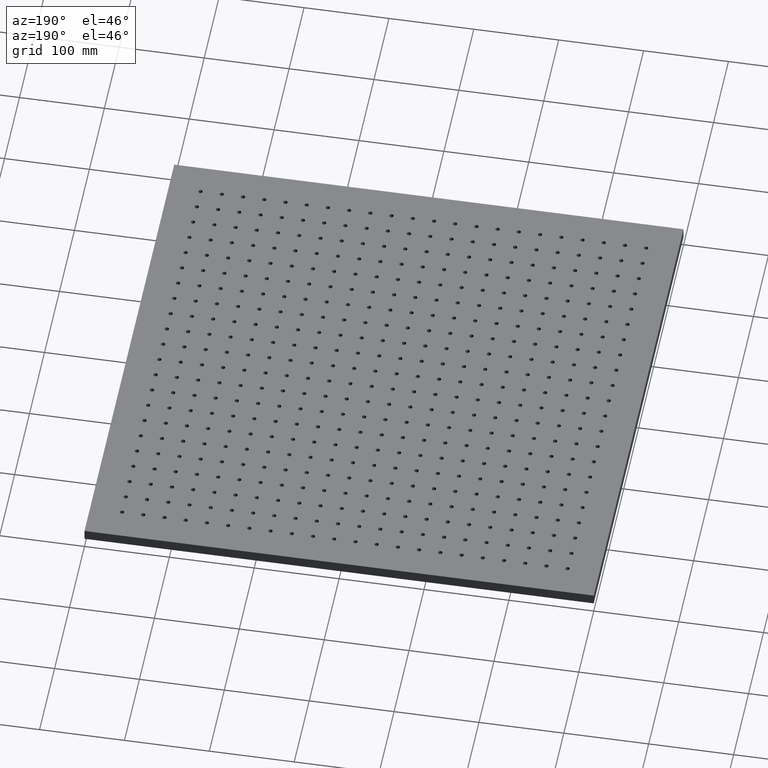
[diagram: clean part render]
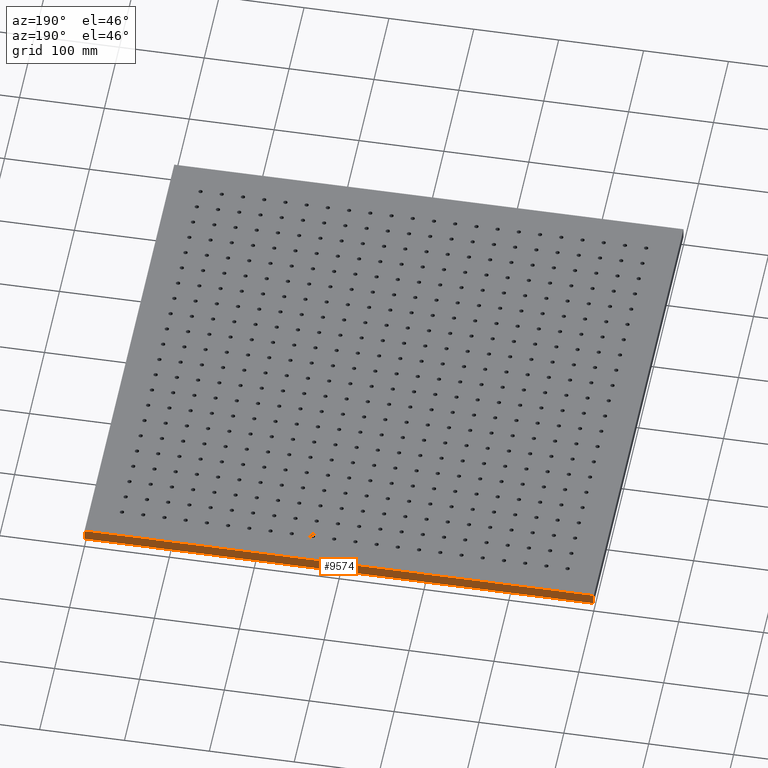
[diagram: same view with one face highlighted and labeled with its STEP entity id]
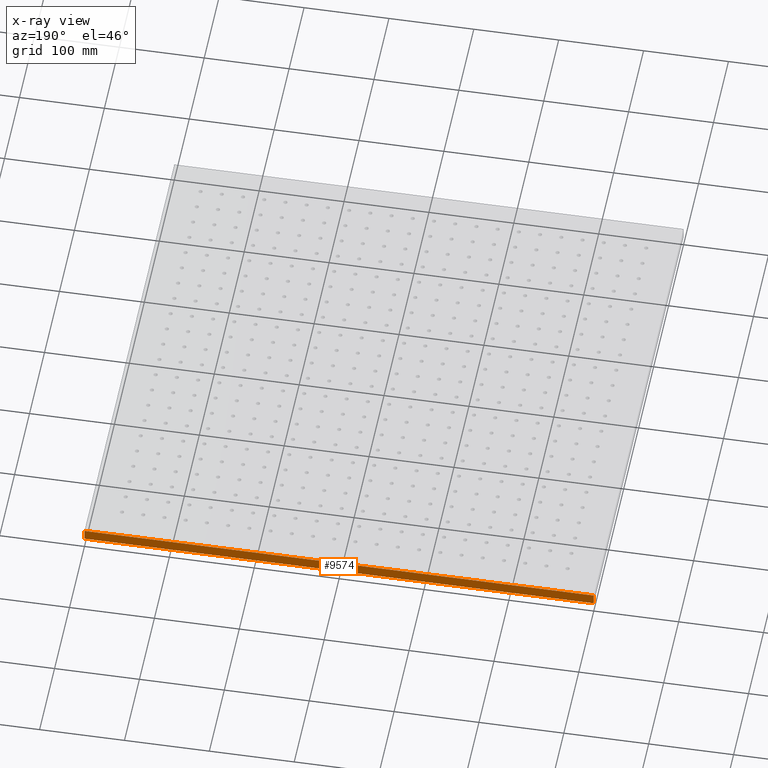
[diagram: x-ray of the same camera — body ghosted, the highlighted face saturated]
A machine part, auxiliary view. The second image highlights one B-rep face of the part: STEP entity #9574.
The next image is the same camera in x-ray: the body ghosted, the highlighted face saturated — about 0% of this face is hidden behind the body in this view.
In plain terms, the highlighted planar face has unit normal (0, -1, 0).
Its self-contained STEP definition (entity closure, byte-faithful):
#287 = EDGE_CURVE ( 'NONE', #5920, #21525, #28682, .T. ) ;
#2145 = DIRECTION ( 'NONE',  ( 0.0000000000000000000, -0.0000000000000000000, -1.000000000000000000 ) ) ;
#3049 = CARTESIAN_POINT ( 'NONE',  ( -300.0000000000000600, 300.0000000000000600, 0.0000000000000000000 ) ) ;
#4829 = VECTOR ( 'NONE', #22472, 1000.000000000000000 ) ;
#5288 = VECTOR ( 'NONE', #12835, 1000.000000000000000 ) ;
#5846 = VERTEX_POINT ( 'NONE', #29410 ) ;
#5920 = VERTEX_POINT ( 'NONE', #29646 ) ;
#9502 = EDGE_CURVE ( 'NONE', #5920, #5846, #33092, .T. ) ;
#9574 = ADVANCED_FACE ( 'NONE', ( #23104 ), #26957, .F. ) ;
#11517 = CARTESIAN_POINT ( 'NONE',  ( 299.9999999999999400, 300.0000000000000600, 0.0000000000000000000 ) ) ;
#12054 = ORIENTED_EDGE ( 'NONE', *, *, #16847, .T. ) ;
#12493 = DIRECTION ( 'NONE',  ( -0.0000000000000000000, -0.0000000000000000000, -1.000000000000000000 ) ) ;
#12835 = DIRECTION ( 'NONE',  ( -1.000000000000000000, -0.0000000000000000000, -0.0000000000000000000 ) ) ;
#13055 = EDGE_LOOP ( 'NONE', ( #12054, #32391, #32812, #27973 ) ) ;
#13182 = EDGE_CURVE ( 'NONE', #5846, #24601, #15536, .T. ) ;
#15536 = LINE ( 'NONE', #34678, #29375 ) ;
#16847 = EDGE_CURVE ( 'NONE', #21525, #24601, #34377, .T. ) ;
#17659 = CARTESIAN_POINT ( 'NONE',  ( -300.0000000000000600, 300.0000000000000600, 0.0000000000000000000 ) ) ;
#18719 = DIRECTION ( 'NONE',  ( 0.0000000000000000000, -1.000000000000000000, 0.0000000000000000000 ) ) ;
#21303 = VECTOR ( 'NONE', #30473, 1000.000000000000000 ) ;
#21525 = VERTEX_POINT ( 'NONE', #11517 ) ;
#22472 = DIRECTION ( 'NONE',  ( -1.000000000000000000, -0.0000000000000000000, -0.0000000000000000000 ) ) ;
#23104 = FACE_OUTER_BOUND ( 'NONE', #13055, .T. ) ;
#24601 = VERTEX_POINT ( 'NONE', #17659 ) ;
#26957 = PLANE ( 'NONE',  #27614 ) ;
#27614 = AXIS2_PLACEMENT_3D ( 'NONE', #32568, #18719, #2145 ) ;
#27973 = ORIENTED_EDGE ( 'NONE', *, *, #287, .T. ) ;
#28682 = LINE ( 'NONE', #33037, #21303 ) ;
#29375 = VECTOR ( 'NONE', #12493, 1000.000000000000000 ) ;
#29410 = CARTESIAN_POINT ( 'NONE',  ( -300.0000000000000600, 300.0000000000000600, 13.00000000000000000 ) ) ;
#29646 = CARTESIAN_POINT ( 'NONE',  ( 299.9999999999999400, 300.0000000000000600, 13.00000000000000000 ) ) ;
#30473 = DIRECTION ( 'NONE',  ( -0.0000000000000000000, -0.0000000000000000000, -1.000000000000000000 ) ) ;
#31979 = CARTESIAN_POINT ( 'NONE',  ( -300.0000000000000600, 300.0000000000000600, 13.00000000000000000 ) ) ;
#32391 = ORIENTED_EDGE ( 'NONE', *, *, #13182, .F. ) ;
#32568 = CARTESIAN_POINT ( 'NONE',  ( -300.0000000000000600, 300.0000000000000600, 13.00000000000000000 ) ) ;
#32812 = ORIENTED_EDGE ( 'NONE', *, *, #9502, .F. ) ;
#33037 = CARTESIAN_POINT ( 'NONE',  ( 299.9999999999999400, 300.0000000000000600, 13.00000000000000000 ) ) ;
#33092 = LINE ( 'NONE', #31979, #5288 ) ;
#34377 = LINE ( 'NONE', #3049, #4829 ) ;
#34678 = CARTESIAN_POINT ( 'NONE',  ( -300.0000000000000600, 300.0000000000000600, 13.00000000000000000 ) ) ;